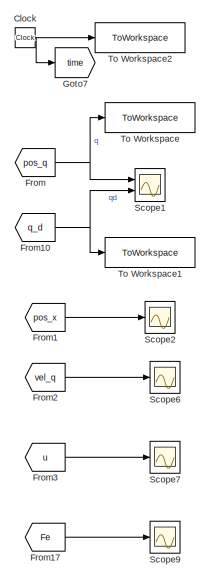
[diagram: root canvas - part 1/4, top right region]
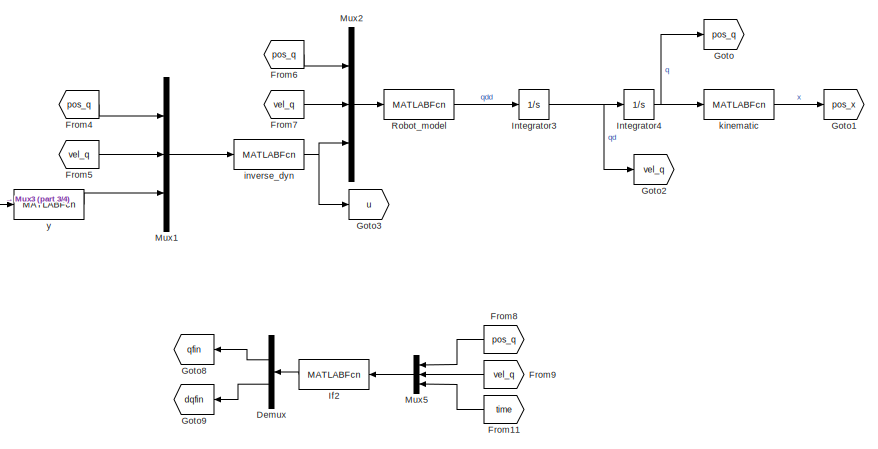
[diagram: root canvas - part 2/4, central region]
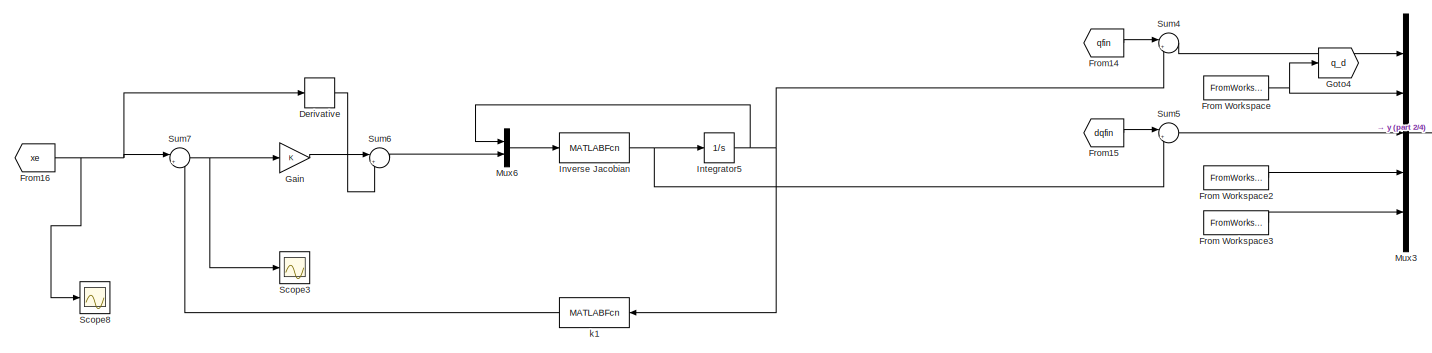
[diagram: root canvas - part 3/4, middle left region]
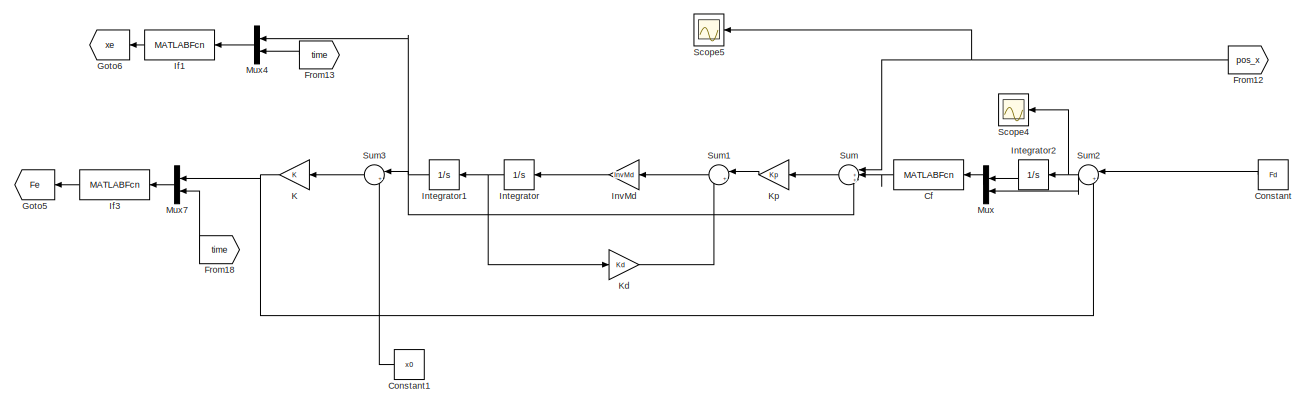
[diagram: root canvas - part 4/4, bottom center region]
MODEL slx_b3dabda76d84
KIND model
CONFIG AbsTol = auto
CONFIG EnableMultiTasking = off
CONFIG FixedStep = auto
CONFIG MaxStep = auto
CONFIG MinStep = auto
CONFIG RelTol = 1e-3
CONFIG SampleTimeConstraint = Unconstrained
CONFIG Solver = VariableStepAuto
CONFIG SolverName = VariableStepAuto
CONFIG StartTime = 0.0
CONFIG StopTime = 10
BLOCK [MATLABFcn] Cf
  MATLABFcn = Cf
  OutputDimensions = 6*1
  Ports = [1, 1]
BLOCK [Clock] Clock
  Decimation = 18
BLOCK [Constant] Constant
  Value = Fd
BLOCK [Constant] Constant1
  Value = x0
BLOCK [Demux] Demux
  NameLocation = top
  Outputs = [6, 6]
  Ports = [1, 2]
BLOCK [Derivative] Derivative
BLOCK [From] From
  GotoTag = pos_q
BLOCK [FromWorkspace] From Workspace
  VariableName = [tt' qd]
BLOCK [FromWorkspace] From Workspace2
  VariableName = [tt' dqd]
BLOCK [FromWorkspace] From Workspace3
  VariableName = [tt' ddqd]
BLOCK [From] From1
  GotoTag = pos_x
BLOCK [From] From10
  GotoTag = q_d
BLOCK [From] From11
  GotoTag = time
BLOCK [From] From12
  GotoTag = pos_x
BLOCK [From] From13
  GotoTag = time
BLOCK [From] From14
  GotoTag = qfin
BLOCK [From] From15
  GotoTag = dqfin
BLOCK [From] From16
  GotoTag = xe
BLOCK [From] From17
  GotoTag = Fe
BLOCK [From] From18
  GotoTag = time
BLOCK [From] From2
  GotoTag = vel_q
BLOCK [From] From3
  GotoTag = u
BLOCK [From] From4
  GotoTag = pos_q
BLOCK [From] From5
  GotoTag = vel_q
BLOCK [From] From6
  GotoTag = pos_q
BLOCK [From] From7
  GotoTag = vel_q
BLOCK [From] From8
  GotoTag = pos_q
BLOCK [From] From9
  GotoTag = vel_q
BLOCK [Gain] Gain
  Gain = K
  Multiplication = Matrix(K*u)
BLOCK [Goto] Goto
  GotoTag = pos_q
BLOCK [Goto] Goto1
  GotoTag = pos_x
BLOCK [Goto] Goto2
  GotoTag = vel_q
BLOCK [Goto] Goto3
  GotoTag = u
BLOCK [Goto] Goto4
  GotoTag = q_d
BLOCK [Goto] Goto5
  GotoTag = Fe
BLOCK [Goto] Goto6
  GotoTag = xe
BLOCK [Goto] Goto7
  GotoTag = time
BLOCK [Goto] Goto8
  GotoTag = qfin
BLOCK [Goto] Goto9
  GotoTag = dqfin
BLOCK [MATLABFcn] If1
  MATLABFcn = If1
  OutputDimensions = 6
  Ports = [1, 1]
BLOCK [MATLABFcn] If2
  MATLABFcn = If2
  OutputDimensions = 12
  Ports = [1, 1]
BLOCK [MATLABFcn] If3
  MATLABFcn = If1
  OutputDimensions = 6
  Ports = [1, 1]
BLOCK [Integrator] Integrator
  Ports = [1, 1]
BLOCK [Integrator] Integrator1
  InitialCondition = x0
  Ports = [1, 1]
BLOCK [Integrator] Integrator2
  Ports = [1, 1]
BLOCK [Integrator] Integrator3
  Ports = [1, 1]
BLOCK [Integrator] Integrator4
  InitialCondition = q0
  Ports = [1, 1]
BLOCK [Integrator] Integrator5
  InitialCondition = qf
  Ports = [1, 1]
BLOCK [Gain] InvMd
  Gain = InvMd
  Multiplication = Matrix(K*u)
BLOCK [MATLABFcn] Inverse Jacobian
  MATLABFcn = Inverse_Jac
  OutputDimensions = 6*1
  Ports = [1, 1]
BLOCK [Gain] K
  Gain = K
  Multiplication = Matrix(K*u)
BLOCK [Gain] Kd
  Gain = Kd
  Multiplication = Matrix(K*u)
BLOCK [Gain] Kp
  Gain = Kp
  Multiplication = Matrix(K*u)
BLOCK [Mux] Mux
  DisplayOption = bar
  Inputs = 2
  Ports = [2, 1]
BLOCK [Mux] Mux1
  DisplayOption = bar
  Inputs = [6 6 6]
  Ports = [3, 1]
BLOCK [Mux] Mux2
  DisplayOption = bar
  Inputs = [6 6 6]
  Ports = [3, 1]
BLOCK [Mux] Mux3
  DisplayOption = bar
  Inputs = [6 6 6 6 6]
  Ports = [5, 1]
BLOCK [Mux] Mux4
  DisplayOption = bar
  Inputs = 2
  Ports = [2, 1]
BLOCK [Mux] Mux5
  DisplayOption = bar
  Inputs = 3
  Ports = [3, 1]
BLOCK [Mux] Mux6
  DisplayOption = bar
  Inputs = [6 6]
  Ports = [2, 1]
BLOCK [Mux] Mux7
  DisplayOption = bar
  Inputs = 2
  Ports = [2, 1]
BLOCK [MATLABFcn] Robot_model
  MATLABFcn = Abb_model_matrix
  OutputDimensions = 6
  Ports = [1, 1]
BLOCK [Scope] Scope1
  Floating = off
  NumInputPorts = 2
  Ports = [2]
  ScopeSpecificationString = Simulink.scopes.TimeScopeBlockCfg('CurrentConfiguration', extmgr.ConfigurationSet(extmgr.Configuration('Core','General UI',true),extmgr.Configuration('Core','Source UI',true),extmgr.Configuration('Sources','WiredSimulink',true,'DataLoggingVariableName','ScopeData4'),extmgr.Configuration('Visuals','Time Domain',true,'SerializedDisplays',{struct('MinYLimReal','-3.47672','MaxYLimReal','2.54695','YLab...<+1787ch>
BLOCK [Scope] Scope2
  Floating = off
  NumInputPorts = 1
  Ports = [1]
  ScopeSpecificationString = Simulink.scopes.TimeScopeBlockCfg('CurrentConfiguration', extmgr.ConfigurationSet(extmgr.Configuration('Core','General UI',true),extmgr.Configuration('Core','Source UI',true),extmgr.Configuration('Sources','WiredSimulink',true,'DataLoggingVariableName','ScopeData5'),extmgr.Configuration('Visuals','Time Domain',true,'SerializedDisplays',{struct('MinYLimReal','-3.92699','MaxYLimReal','3.92699','YLab...<+1566ch>
BLOCK [Scope] Scope3
  Floating = off
  NumInputPorts = 1
  Ports = [1]
  ScopeSpecificationString = Simulink.scopes.TimeScopeBlockCfg('CurrentConfiguration', extmgr.ConfigurationSet(extmgr.Configuration('Core','General UI',true),extmgr.Configuration('Core','Source UI',true),extmgr.Configuration('Sources','WiredSimulink',true,'DataLoggingVariableName','ScopeData2'),extmgr.Configuration('Visuals','Time Domain',true,'SerializedDisplays',{struct('MinYLimReal','-0.00011','MaxYLimReal','0.00011','YLab...<+1437ch>
BLOCK [Scope] Scope4
  Floating = off
  NumInputPorts = 1
  Ports = [1]
  ScopeSpecificationString = Simulink.scopes.TimeScopeBlockCfg('CurrentConfiguration', extmgr.ConfigurationSet(extmgr.Configuration('Core','General UI',true),extmgr.Configuration('Core','Source UI',true),extmgr.Configuration('Sources','WiredSimulink',true,'DataLoggingVariableName','ScopeData3'),extmgr.Configuration('Visuals','Time Domain',true,'SerializedDisplays',{struct('MinYLimReal','-3.52214','MaxYLimReal','10.39135','YLa...<+1443ch>
BLOCK [Scope] Scope5
  Floating = off
  NumInputPorts = 1
  Ports = [1]
  ScopeSpecificationString = Simulink.scopes.TimeScopeBlockCfg('CurrentConfiguration', extmgr.ConfigurationSet(extmgr.Configuration('Core','General UI',true),extmgr.Configuration('Core','Source UI',true),extmgr.Configuration('Sources','WiredSimulink',true),extmgr.Configuration('Visuals','Time Domain',true,'SerializedDisplays',{struct('MinYLimReal','-3.43612','MaxYLimReal','2.12712','YLabelReal','','MinYLimMag','0.00000','MaxY...<+1966ch>
BLOCK [Scope] Scope6
  Floating = off
  NumInputPorts = 1
  Ports = [1]
  ScopeSpecificationString = Simulink.scopes.TimeScopeBlockCfg('CurrentConfiguration', extmgr.ConfigurationSet(extmgr.Configuration('Core','General UI',true),extmgr.Configuration('Core','Source UI',true),extmgr.Configuration('Sources','WiredSimulink',true,'DataLoggingVariableName','ScopeData6'),extmgr.Configuration('Visuals','Time Domain',true),extmgr.Configuration('Tools','Plot Navigation',true),extmgr.Configuration('Tools',...<+40ch>
BLOCK [Scope] Scope7
  Floating = off
  NumInputPorts = 1
  Ports = [1]
  ScopeSpecificationString = Simulink.scopes.TimeScopeBlockCfg('CurrentConfiguration', extmgr.ConfigurationSet(extmgr.Configuration('Core','General UI',true),extmgr.Configuration('Core','Source UI',true),extmgr.Configuration('Sources','WiredSimulink',true,'DataLoggingVariableName','ScopeData7'),extmgr.Configuration('Visuals','Time Domain',true,'SerializedDisplays',{struct('MinYLimReal','-2284880326731139840.00000','MaxYLimRea...<+1619ch>
BLOCK [Scope] Scope8
  Floating = off
  NumInputPorts = 1
  Ports = [1]
  ScopeSpecificationString = Simulink.scopes.TimeScopeBlockCfg('CurrentConfiguration', extmgr.ConfigurationSet(extmgr.Configuration('Core','General UI',true),extmgr.Configuration('Core','Source UI',true),extmgr.Configuration('Sources','WiredSimulink',true,'DataLoggingVariableName','ScopeData8'),extmgr.Configuration('Visuals','Time Domain',true,'SerializedDisplays',{struct('MinYLimReal','-3.43612','MaxYLimReal','2.12712','YLab...<+1504ch>
BLOCK [Scope] Scope9
  Floating = off
  NumInputPorts = 1
  Ports = [1]
  ScopeSpecificationString = Simulink.scopes.TimeScopeBlockCfg('CurrentConfiguration', extmgr.ConfigurationSet(extmgr.Configuration('Core','General UI',true),extmgr.Configuration('Core','Source UI',true),extmgr.Configuration('Sources','WiredSimulink',true,'DataLoggingVariableName','ScopeData1'),extmgr.Configuration('Visuals','Time Domain',true,'SerializedDisplays',{struct('MinYLimReal','-1.00000','MaxYLimReal','1.00000','YLab...<+1429ch>
BLOCK [Sum] Sum
  Inputs = |++-
  Ports = [3, 1]
BLOCK [Sum] Sum1
  Inputs = |+-
  Ports = [2, 1]
BLOCK [Sum] Sum2
  Inputs = |+-
  Ports = [2, 1]
BLOCK [Sum] Sum3
  Inputs = |+-
  Ports = [2, 1]
BLOCK [Sum] Sum4
  Inputs = |++
  Ports = [2, 1]
BLOCK [Sum] Sum5
  Inputs = |++
  Ports = [2, 1]
BLOCK [Sum] Sum6
  Inputs = |++
  Ports = [2, 1]
BLOCK [Sum] Sum7
  Inputs = |+-
  Ports = [2, 1]
BLOCK [ToWorkspace] To Workspace
  FixptAsFi = on
  MaxDataPoints = inf
  Ports = [1]
  SampleTime = -1
  VariableName = pos_r
BLOCK [ToWorkspace] To Workspace1
  FixptAsFi = on
  MaxDataPoints = inf
  Ports = [1]
  SampleTime = -1
  VariableName = pos_r_d
BLOCK [ToWorkspace] To Workspace2
  FixptAsFi = on
  MaxDataPoints = inf
  Ports = [1]
  SampleTime = -1
  VariableName = time
BLOCK [MATLABFcn] inverse_dyn
  MATLABFcn = inv_dyn
  OutputDimensions = 6
  Ports = [1, 1]
BLOCK [MATLABFcn] k1
  MATLABFcn = dir_kin
  Ports = [1, 1]
BLOCK [MATLABFcn] kinematic
  MATLABFcn = dir_kin
  Ports = [1, 1]
BLOCK [MATLABFcn] y
  MATLABFcn = aux_y
  Ports = [1, 1]
LINE Cf:1 -> Sum:2
NET Clock:1 -> Goto7:1, To Workspace2:1
LINE Constant1:1 -> Sum3:2
LINE Constant:1 -> Sum2:1
LINE Demux:1 -> Goto8:1
LINE Demux:2 -> Goto9:1
LINE Derivative:1 -> Sum6:2
LINE From Workspace2:1 -> Mux3:4
LINE From Workspace3:1 -> Mux3:5
NET From Workspace:1 -> Goto4:1, Mux3:2
NET From10:1 -> Scope1:2, To Workspace1:1
LINE From11:1 -> Mux5:3
NET From12:1 -> Scope5:1, Sum:1
LINE From13:1 -> Mux4:2
LINE From14:1 -> Sum4:1
LINE From15:1 -> Sum5:1
NET From16:1 -> Derivative:1, Scope8:1, Sum7:1
LINE From17:1 -> Scope9:1
LINE From18:1 -> Mux7:2
LINE From1:1 -> Scope2:1
LINE From2:1 -> Scope6:1
LINE From3:1 -> Scope7:1
LINE From4:1 -> Mux1:1
LINE From5:1 -> Mux1:2
LINE From6:1 -> Mux2:1
LINE From7:1 -> Mux2:2
LINE From8:1 -> Mux5:1
LINE From9:1 -> Mux5:2
NET From:1 -> Scope1:1, To Workspace:1
LINE Gain:1 -> Sum6:1
LINE If1:1 -> Goto6:1
LINE If2:1 -> Demux:1
LINE If3:1 -> Goto5:1
NET Integrator1:1 -> Mux4:1, Sum3:1, Sum:3
LINE Integrator2:1 -> Mux:1
NET Integrator3:1 -> Goto2:1, Integrator4:1
NET Integrator4:1 -> Goto:1, kinematic:1
NET Integrator5:1 -> Mux6:1, Sum4:2, k1:1
NET Integrator:1 -> Integrator1:1, Kd:1
LINE InvMd:1 -> Integrator:1
NET Inverse Jacobian:1 -> Integrator5:1, Sum5:2
NET K:1 -> Mux7:1, Sum2:2
LINE Kd:1 -> Sum1:2
LINE Kp:1 -> Sum1:1
LINE Mux1:1 -> inverse_dyn:1
LINE Mux2:1 -> Robot_model:1
LINE Mux3:1 -> y:1
LINE Mux4:1 -> If1:1
LINE Mux5:1 -> If2:1
LINE Mux6:1 -> Inverse Jacobian:1
LINE Mux7:1 -> If3:1
LINE Mux:1 -> Cf:1
LINE Robot_model:1 -> Integrator3:1
LINE Sum1:1 -> InvMd:1
NET Sum2:1 -> Integrator2:1, Mux:2, Scope4:1
LINE Sum3:1 -> K:1
LINE Sum4:1 -> Mux3:1
LINE Sum5:1 -> Mux3:3
LINE Sum6:1 -> Mux6:2
NET Sum7:1 -> Gain:1, Scope3:1
LINE Sum:1 -> Kp:1
NET inverse_dyn:1 -> Goto3:1, Mux2:3
LINE k1:1 -> Sum7:2
LINE kinematic:1 -> Goto1:1
LINE y:1 -> Mux1:3
note: NET lines group one-source signal fan-out (src -> all destinations, sorted); 1:1 wires keep LINE
